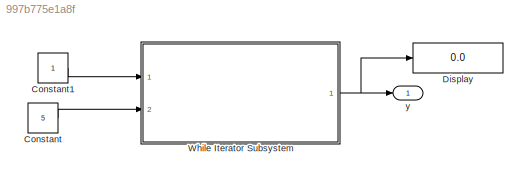
MODEL slx_997b775e1a8f
KIND model
CONFIG AbsTol = auto
CONFIG EnableMultiTasking = off
CONFIG FixedStep = auto
CONFIG MaxStep = auto
CONFIG MinStep = auto
CONFIG RelTol = 1e-3
CONFIG SampleTimeConstraint = Unconstrained
CONFIG SolverName = VariableStepAuto
CONFIG StartTime = 0.0
CONFIG StopTime = 1
BLOCK [Constant] Constant
  OutDataTypeStr = int32
  Value = 5
BLOCK [Constant] Constant1
  OutDataTypeStr = int32
BLOCK [Display] Display
  Decimation = 1
  Ports = [1]
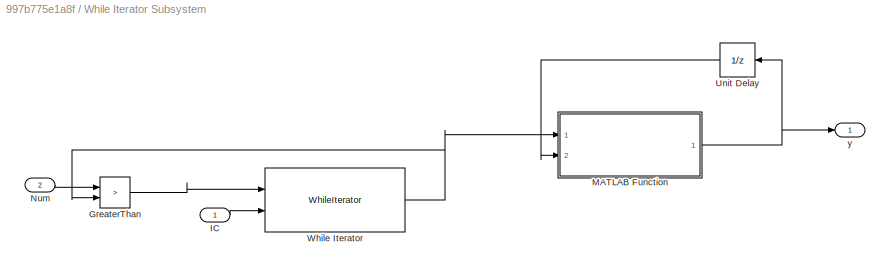
BLOCK [SubSystem] While Iterator Subsystem
  Ports = [2, 1]
  RequestExecContextInheritance = off
  TreatAsAtomicUnit = on
BLOCK [RelationalOperator] While Iterator Subsystem/GreaterThan
  InputSameDT = off
  Operator = >
  OutDataTypeStr = boolean
  Ports = [2, 1]
  RndMeth = Simplest
BLOCK [Inport] While Iterator Subsystem/IC
  OutDataTypeStr = int32
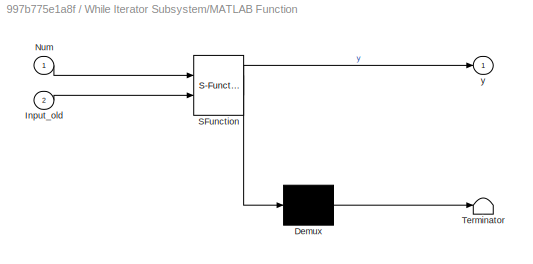
BLOCK [SubSystem] While Iterator Subsystem/MATLAB Function
  ErrorFcn = Stateflow.Translate.translate
  PermitHierarchicalResolution = ExplicitOnly
  Ports = [2, 1]
  RequestExecContextInheritance = off
  SFBlockType = MATLAB Function
  TreatAsAtomicUnit = on
BLOCK [Demux] While Iterator Subsystem/MATLAB Function/ Demux 
  Outputs = 1
  Ports = [1, 1]
BLOCK [S-Function] While Iterator Subsystem/MATLAB Function/ SFunction 
  EnableBusSupport = on
  FunctionName = sf_sfun
  PortCounts = [2 2]
  Ports = [2, 2]
  SFcnIsStateOwnerBlock = off
  SFunctionDeploymentMode = off
  Tag = Stateflow S-Function 2
BLOCK [Terminator] While Iterator Subsystem/MATLAB Function/ Terminator 
BLOCK [Inport] While Iterator Subsystem/MATLAB Function/Input_old
  Port = 2
BLOCK [Inport] While Iterator Subsystem/MATLAB Function/Num
BLOCK [Outport] While Iterator Subsystem/MATLAB Function/y
BLOCK [Inport] While Iterator Subsystem/Num
  OutDataTypeStr = int32
  Port = 2
BLOCK [UnitDelay] While Iterator Subsystem/Unit Delay
  HasFrameUpgradeWarning = on
  InitialCondition = 1
  NameLocation = top
  SampleTime = -1
BLOCK [WhileIterator] While Iterator Subsystem/While Iterator
  MaxIters = -1
  OutputDataType = double
  Ports = [2, 1]
  ShowIterationPort = on
BLOCK [Outport] While Iterator Subsystem/y
BLOCK [Outport] y
LINE Constant1:1 -> While Iterator Subsystem:1
LINE Constant:1 -> While Iterator Subsystem:2
LINE While Iterator Subsystem/GreaterThan:1 -> While Iterator Subsystem/While Iterator:1
LINE While Iterator Subsystem/IC:1 -> While Iterator Subsystem/While Iterator:2
NET While Iterator Subsystem/MATLAB Function:1 -> While Iterator Subsystem/Unit Delay:1, While Iterator Subsystem/y:1
LINE While Iterator Subsystem/Num:1 -> While Iterator Subsystem/GreaterThan:1
LINE While Iterator Subsystem/Unit Delay:1 -> While Iterator Subsystem/MATLAB Function:2
NET While Iterator Subsystem/While Iterator:1 -> While Iterator Subsystem/GreaterThan:2, While Iterator Subsystem/MATLAB Function:1
NET While Iterator Subsystem:1 -> Display:1, y:1
note: NET lines group one-source signal fan-out (src -> all destinations, sorted); 1:1 wires keep LINE
CHART While Iterator
Subsystem/MATLAB Function states=1 transitions=1
  STATE_LABEL 'eML_blk_kernel()'
  STATE_LABEL 'SCRIPT:\nfunction y = fcn(Num,Input_old)\ny = Num * Input_old;\n'
CHART  states=0 transitions=0
